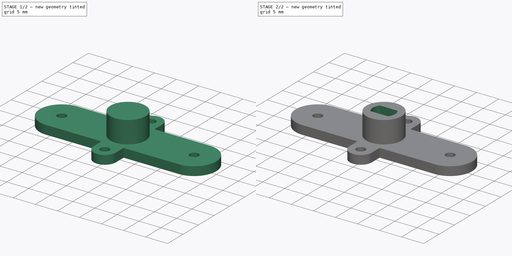
[diagram: build sequence overview — one tinted view per stage of 2, left to right]
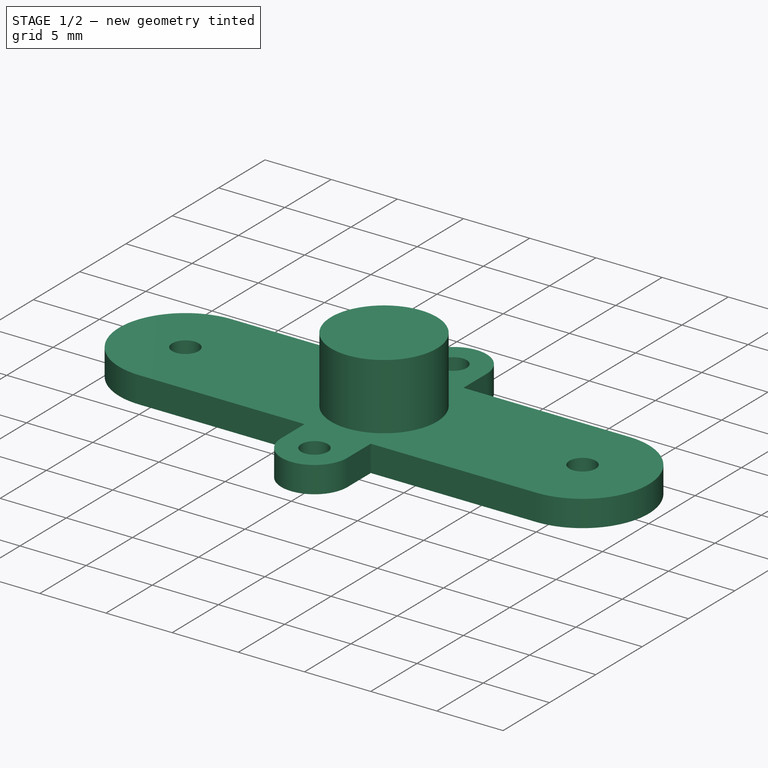
[diagram: stage 1 of 2 — iso view after this stage's code; geometry added in this stage tinted green]
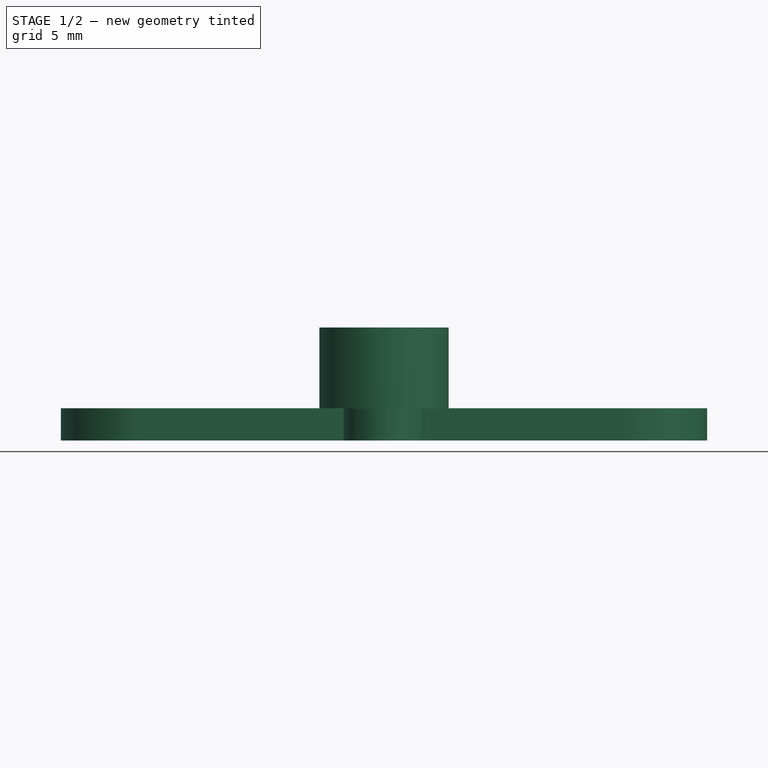
[diagram: stage 1 of 2 — front view after this stage's code; geometry added in this stage tinted green]
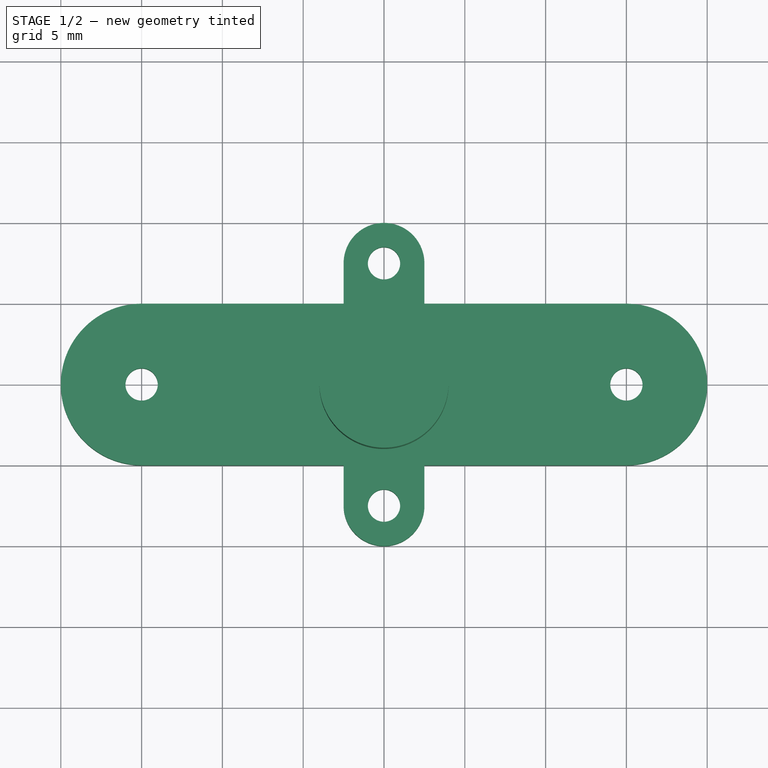
[diagram: stage 1 of 2 — top view after this stage's code; geometry added in this stage tinted green]
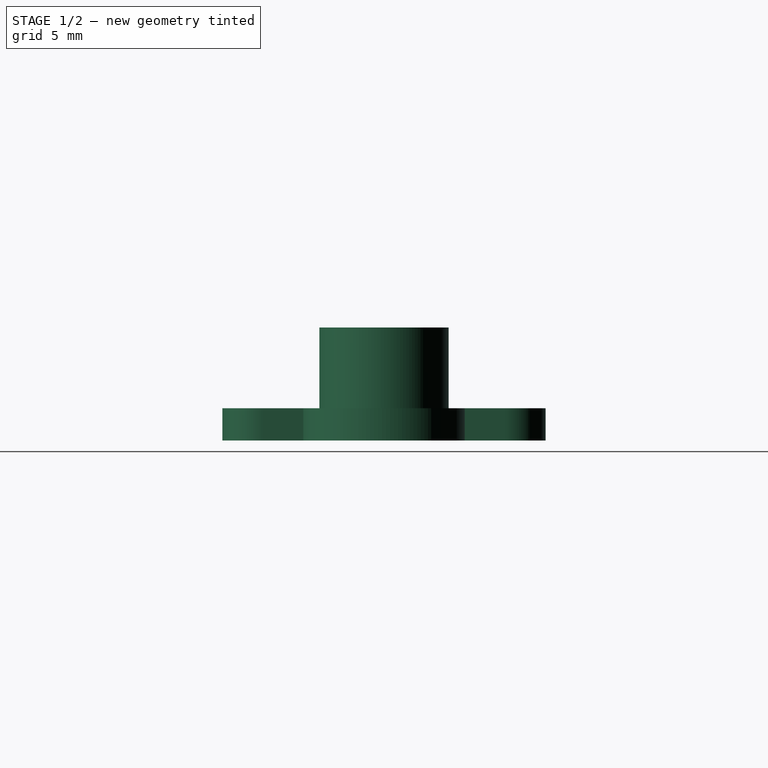
[diagram: stage 1 of 2 — right view after this stage's code; geometry added in this stage tinted green]
FCSTD DOCUMENT  (FreeCAD 0.16R5484 (Git))
Label: 28BYJ-48_4_arms_horn
License: CreativeCommons Attribution-ShareAlike
LicenseURL: http://creativecommons.org/licenses/by-sa/4.0/
objects: Part::Feature×2, Sketcher::SketchObject×1, PartDesign::Pad×1, Part::Cylinder×1, Part::Fuse×1, Part::Cut×1
note: 8 computed .brp shape members not serialized (recipe doc carries the construction recipe); baked Part::Feature solids carry a one-line shape summary decoded from their .brp

FEATURE [Part::Feature] Cut001002  label="Axis003"
  Placement = pos=(0,0,11) rot=(1,0,0;3.14159rad)
  shape: bbox 5 x 5 x 10 mm, 7 faces (baked)
FEATURE [Sketcher::SketchObject] Sketch001
  sketch-geometry (16):
    g0: ArcOfCircle CenterX=-15 CenterY=0 CenterZ=0 NormalX=0 NormalY=0 NormalZ=1 Radius=5 StartAngle=1.5708 EndAngle=4.71239
    g1: ArcOfCircle CenterX=15 CenterY=0 CenterZ=0 NormalX=0 NormalY=0 NormalZ=1 Radius=5 StartAngle=4.71239 EndAngle=7.85398
    g2: LineSegment StartX=-15 StartY=-5 StartZ=0 EndX=-2.5 EndY=-5 EndZ=0
    g3: LineSegment StartX=-15 StartY=5 StartZ=0 EndX=-2.5 EndY=5 EndZ=0
    g4: ArcOfCircle CenterX=0 CenterY=7.5 CenterZ=0 NormalX=0 NormalY=0 NormalZ=1 Radius=2.5 StartAngle=0 EndAngle=3.14159
    g5: ArcOfCircle CenterX=0 CenterY=-7.5 CenterZ=0 NormalX=0 NormalY=0 NormalZ=1 Radius=2.5 StartAngle=3.14159 EndAngle=6.28319
    g6: LineSegment StartX=-2.5 StartY=7.5 StartZ=0 EndX=-2.5 EndY=5 EndZ=0
    g7: LineSegment StartX=2.5 StartY=7.5 StartZ=0 EndX=2.5 EndY=5 EndZ=0
    g8: LineSegment StartX=2.5 StartY=-5 StartZ=0 EndX=15 EndY=-5 EndZ=0
    g9: LineSegment StartX=-2.5 StartY=-5 StartZ=0 EndX=-2.5 EndY=-7.5 EndZ=0
    g10: LineSegment StartX=2.5 StartY=5 StartZ=0 EndX=15 EndY=5 EndZ=0
    g11: LineSegment StartX=2.5 StartY=-5 StartZ=0 EndX=2.5 EndY=-7.5 EndZ=0
    g12: Circle CenterX=-15 CenterY=0 CenterZ=0 NormalX=0 NormalY=0 NormalZ=1 Radius=1
    g13: Circle CenterX=15 CenterY=0 CenterZ=0 NormalX=0 NormalY=0 NormalZ=1 Radius=1
    g14: Circle CenterX=0 CenterY=7.5 CenterZ=0 NormalX=0 NormalY=0 NormalZ=1 Radius=1
    g15: Circle CenterX=0 CenterY=-7.5 CenterZ=0 NormalX=0 NormalY=0 NormalZ=1 Radius=1
  constraints (36):
    c: Tangent(g0,g3) = 1.5708
    c: Tangent(g0,g2) = -1.5708
    c: Tangent(g8,g1) = -1.5708
    c: Tangent(g10,g1) = 1.5708
    c: Horizontal(g2)
    c: Equal(g0,g1)
    c: PointOnObject(g0,g-1)
    c: Symmetric(g0,g1,g-2)
    c: DistanceX(g0,g1) = 30
    c: DistanceY(g0,g0) = -10
    c: Tangent(g4,g7) = 1.5708
    c: Tangent(g4,g6) = -1.5708
    c: Tangent(g9,g5) = -1.5708
    c: Tangent(g11,g5) = 1.5708
    c: Vertical(g6)
    c: Equal(g4,g5)
    c: PointOnObject(g5,g-2)
    c: Symmetric(g5,g4,g-1)
    c: DistanceX(g4,g4) = 5
    c: DistanceY(g4,g5) = -15
    c: Tangent(g2,g8)
    c: Coincident(g9,g2)
    c: Tangent(g6,g9)
    c: Coincident(g3,g6)
    c: Tangent(g3,g10)
    c: Coincident(g7,g10)
    c: Coincident(g11,g8)
    c: Tangent(g7,g11)
    c: Coincident(g12,g0)
    c: Coincident(g14,g4)
    c: Coincident(g15,g5)
    c: Equal(g12,g14)
    c: Equal(g13,g12)
    c: Equal(g12,g15)
    c: Radius(g12) = 1
    c: Coincident(g13,g1)
FEATURE [PartDesign::Pad] Pad001
  Length = 2
  Length2 = 100
  Sketch = -> Sketch001
  Type = 0
FEATURE [Part::Cylinder] Cylinder001  label="Cilindro001"
  Angle = 360
  Height = 7
  Radius = 4
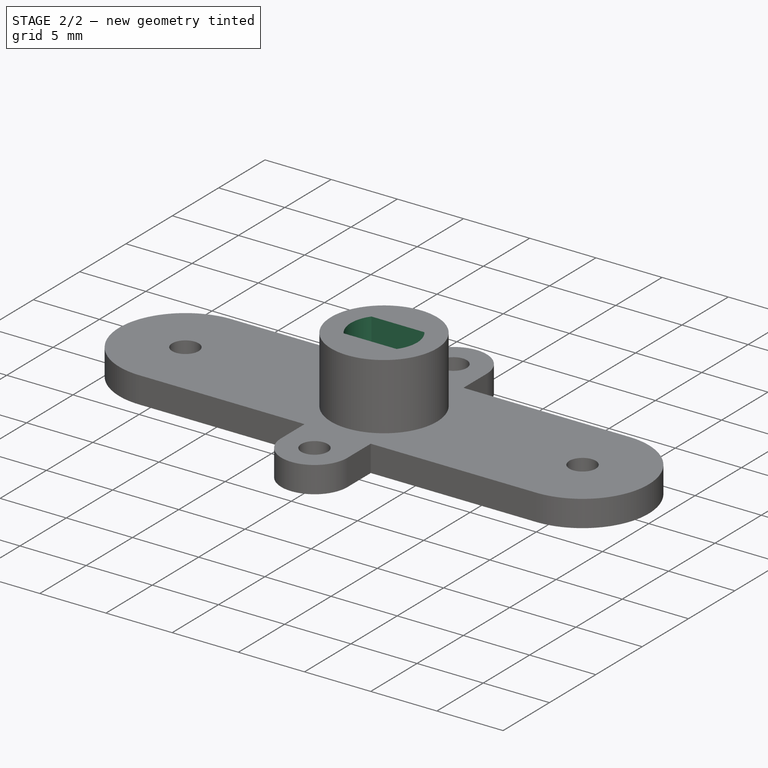
[diagram: stage 2 of 2 — iso view after this stage's code; geometry added in this stage tinted green]
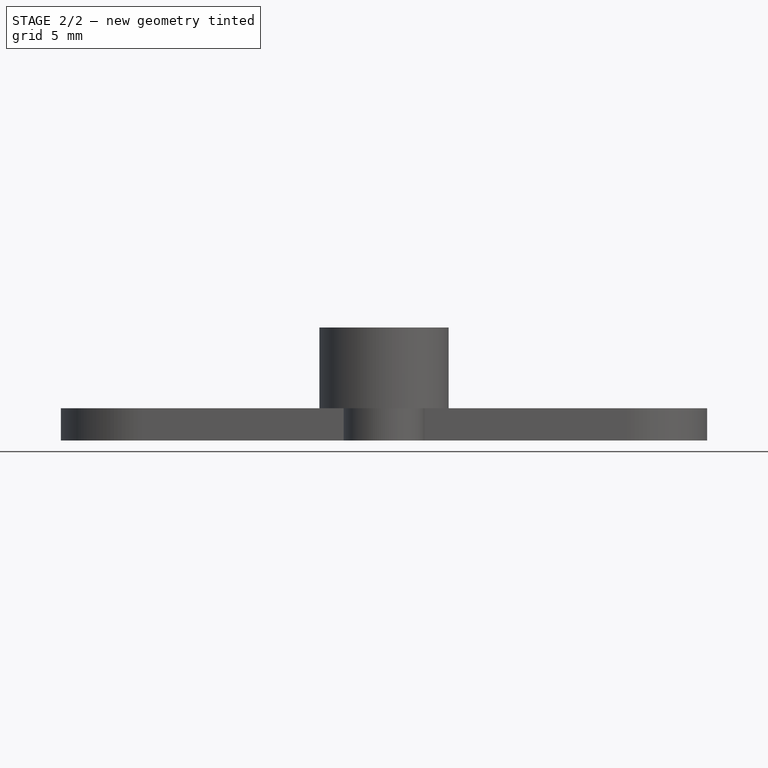
[diagram: stage 2 of 2 — front view after this stage's code; geometry added in this stage tinted green]
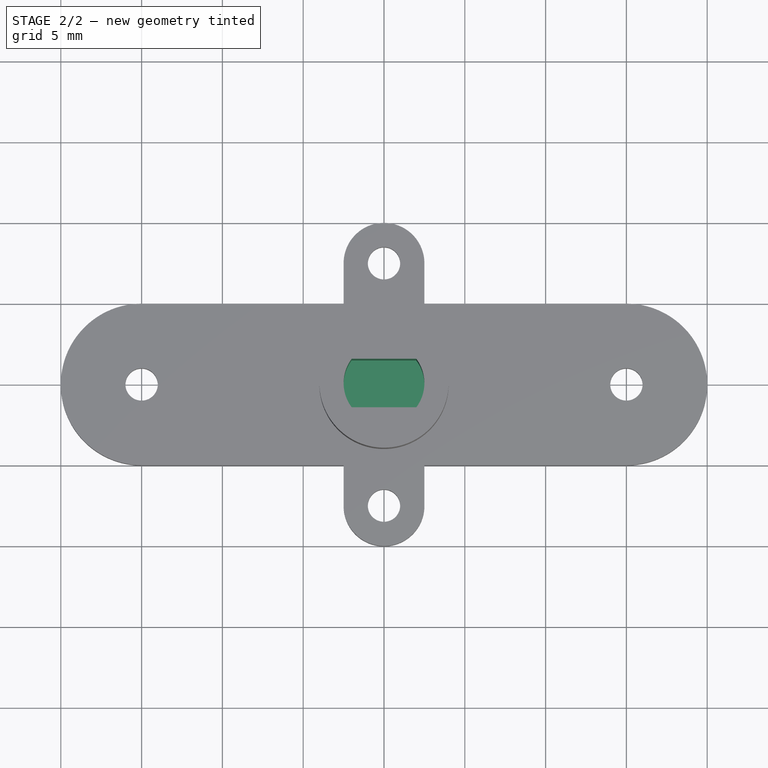
[diagram: stage 2 of 2 — top view after this stage's code; geometry added in this stage tinted green]
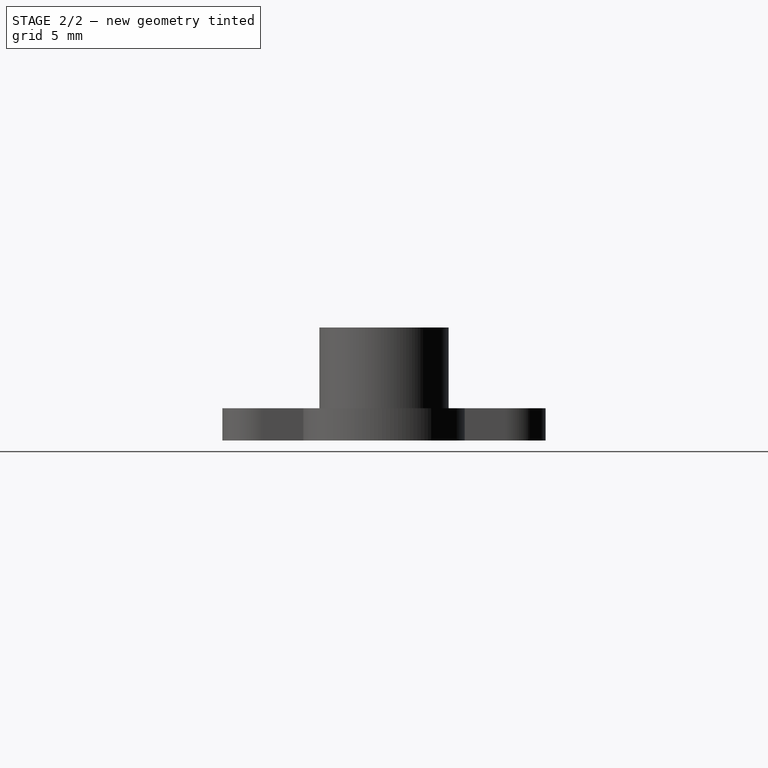
[diagram: stage 2 of 2 — right view after this stage's code; geometry added in this stage tinted green]
FEATURE [Part::Fuse] Fusion001
  Base = -> Pad001
  Tool = -> Cylinder001
FEATURE [Part::Cut] Cut001003  label="4_arms_horn001"
  Base = -> Fusion001
  Tool = -> Cut001002
FEATURE [Part::Feature] Cut001003001  label="28BYJ-48_4_arms_horn"
  shape: bbox 40 x 20 x 7 mm, 25 faces (baked)
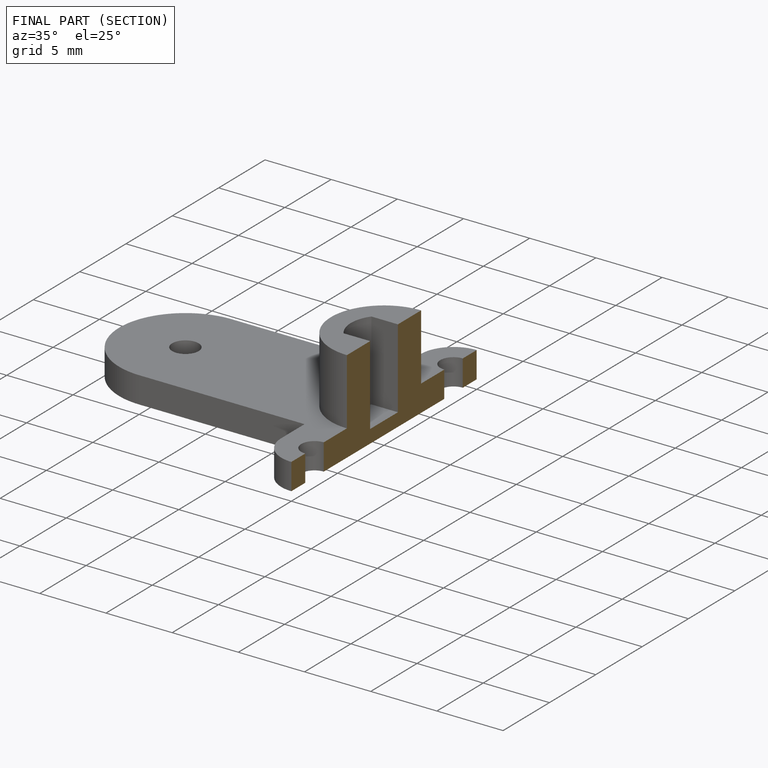
[diagram: finished part — half-section view (interior)]
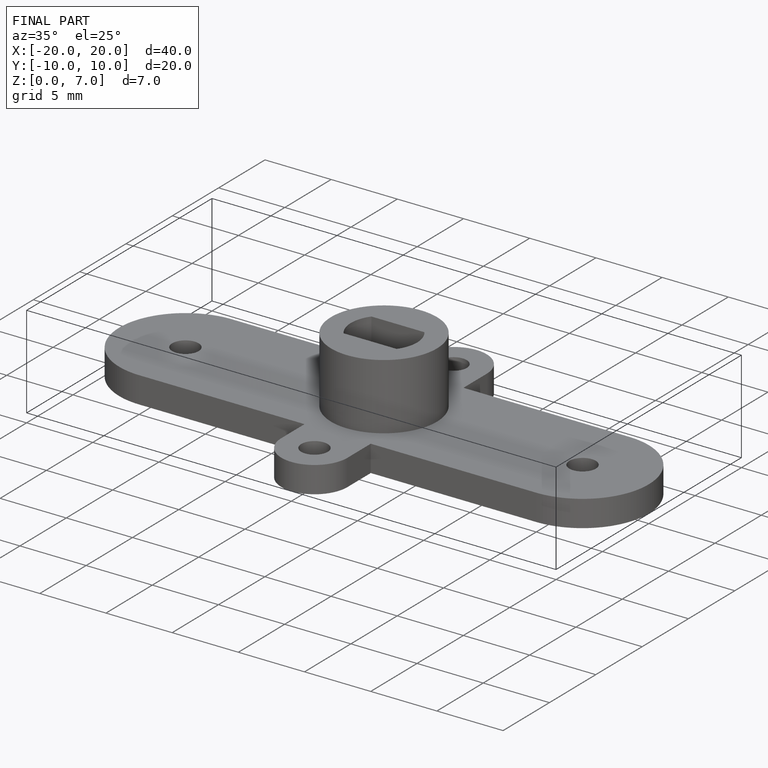
[diagram: finished part — iso view with bounding-box wireframe]
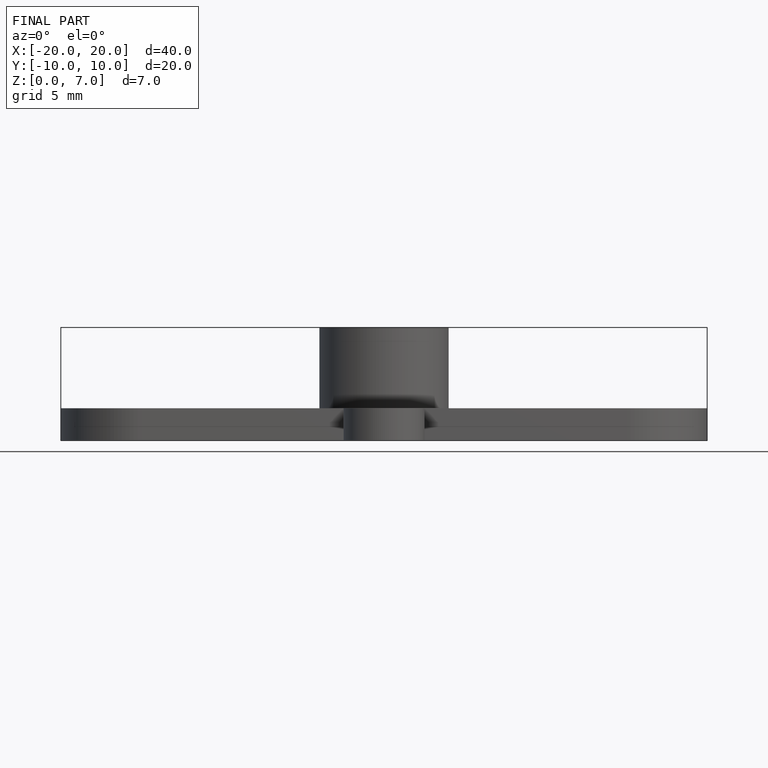
[diagram: finished part — front view with bounding-box wireframe]
